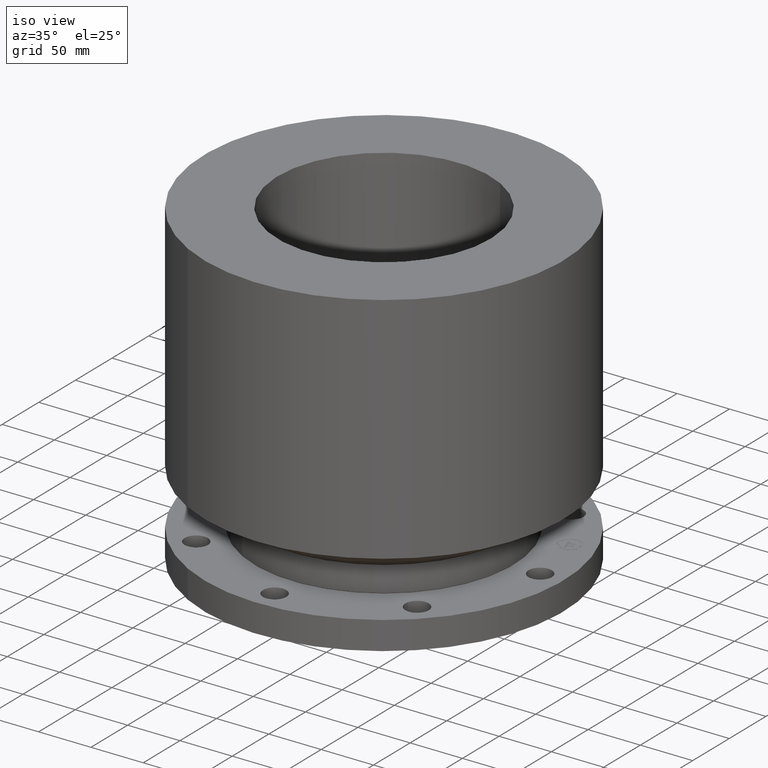
[diagram: clean part render]
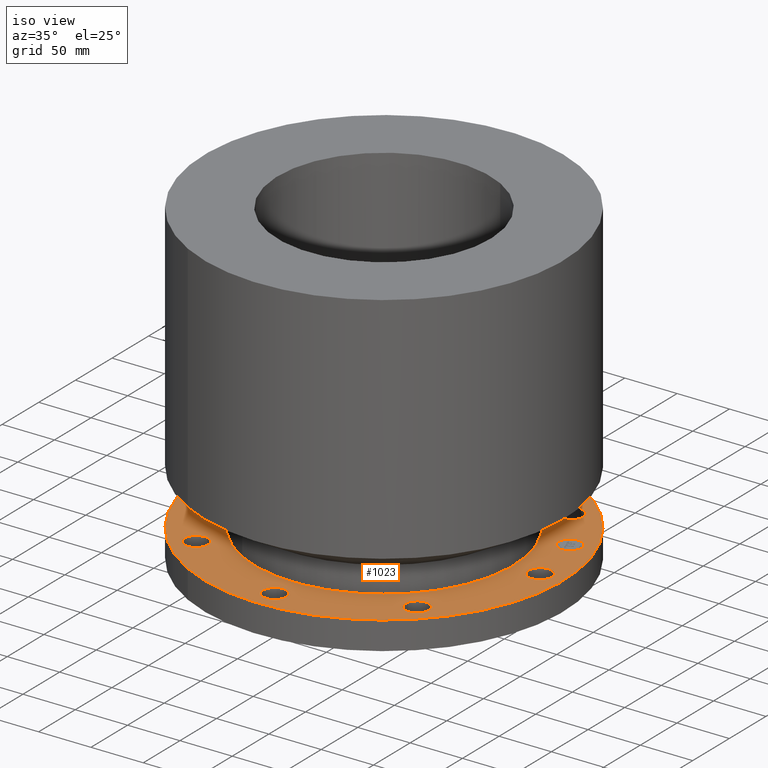
[diagram: same view with one face highlighted and labeled with its STEP entity id]
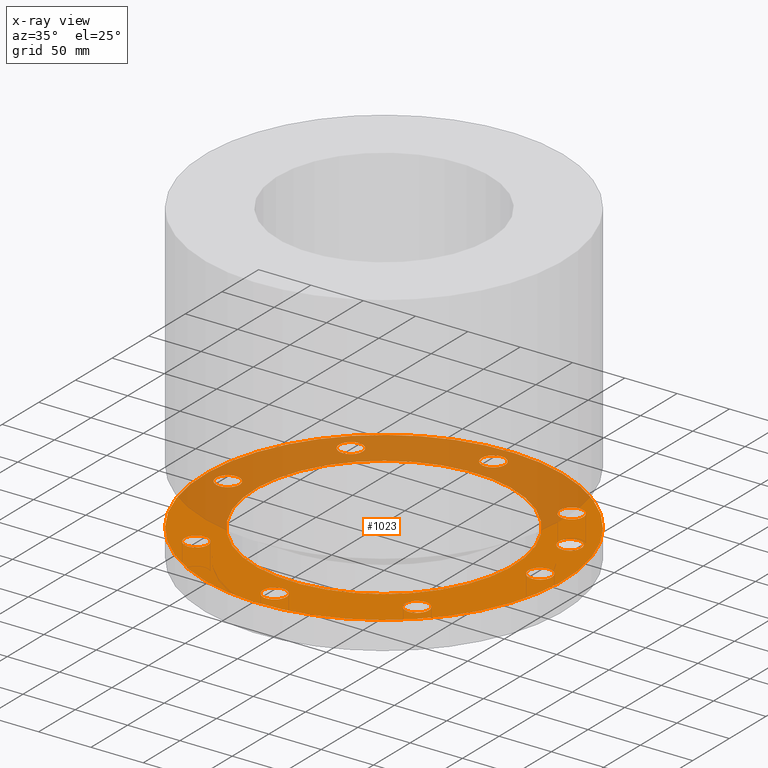
[diagram: x-ray of the same camera — body ghosted, the highlighted face saturated]
A machine part, iso view. The second image highlights one B-rep face of the part: STEP entity #1023.
The next image is the same camera in x-ray: the body ghosted, the highlighted face saturated — about 45% of this face is hidden behind the body in this view.
In plain terms, the highlighted planar face has unit normal (0, 0, -1).
Its self-contained STEP definition (entity closure, byte-faithful):
#65=AXIS2_PLACEMENT_3D('Circle Axis2P3D',#63,#64,$) ;
#266=AXIS2_PLACEMENT_3D('Circle Axis2P3D',#264,#265,$) ;
#285=AXIS2_PLACEMENT_3D('Circle Axis2P3D',#283,#284,$) ;
#302=AXIS2_PLACEMENT_3D('Circle Axis2P3D',#300,#301,$) ;
#337=AXIS2_PLACEMENT_3D('Circle Axis2P3D',#335,#336,$) ;
#649=AXIS2_PLACEMENT_3D('Circle Axis2P3D',#647,#648,$) ;
#680=AXIS2_PLACEMENT_3D('Circle Axis2P3D',#678,#679,$) ;
#692=AXIS2_PLACEMENT_3D('Circle Axis2P3D',#690,#691,$) ;
#723=AXIS2_PLACEMENT_3D('Circle Axis2P3D',#721,#722,$) ;
#735=AXIS2_PLACEMENT_3D('Circle Axis2P3D',#733,#734,$) ;
#766=AXIS2_PLACEMENT_3D('Circle Axis2P3D',#764,#765,$) ;
#778=AXIS2_PLACEMENT_3D('Circle Axis2P3D',#776,#777,$) ;
#809=AXIS2_PLACEMENT_3D('Circle Axis2P3D',#807,#808,$) ;
#821=AXIS2_PLACEMENT_3D('Circle Axis2P3D',#819,#820,$) ;
#852=AXIS2_PLACEMENT_3D('Circle Axis2P3D',#850,#851,$) ;
#864=AXIS2_PLACEMENT_3D('Circle Axis2P3D',#862,#863,$) ;
#895=AXIS2_PLACEMENT_3D('Circle Axis2P3D',#893,#894,$) ;
#907=AXIS2_PLACEMENT_3D('Circle Axis2P3D',#905,#906,$) ;
#938=AXIS2_PLACEMENT_3D('Circle Axis2P3D',#936,#937,$) ;
#950=AXIS2_PLACEMENT_3D('Circle Axis2P3D',#948,#949,$) ;
#963=AXIS2_PLACEMENT_3D('Plane Axis2P3D',#960,#961,#962) ;
#1007=AXIS2_PLACEMENT_3D('Circle Axis2P3D',#1005,#1006,$) ;
#1016=AXIS2_PLACEMENT_3D('Circle Axis2P3D',#1014,#1015,$) ;
#44=CARTESIAN_POINT('Vertex',(6.26113632726,0.210947236987,1.0575)) ;
#60=CARTESIAN_POINT('Vertex',(5.48886367279,-0.210947236987,1.0575)) ;
#63=CARTESIAN_POINT('Axis2P3D Location',(5.87500000002,0.,1.0575)) ;
#261=CARTESIAN_POINT('Vertex',(-3.23612238559,-5.92368229278,1.0575)) ;
#264=CARTESIAN_POINT('Axis2P3D Location',(0.,0.,1.0575)) ;
#268=CARTESIAN_POINT('Vertex',(3.23612238559,5.92368229278,1.0575)) ;
#283=CARTESIAN_POINT('Axis2P3D Location',(0.,0.,1.0575)) ;
#300=CARTESIAN_POINT('Axis2P3D Location',(0.,0.,1.0575)) ;
#304=CARTESIAN_POINT('Vertex',(2.33000811763,4.2650512508,1.0575)) ;
#306=CARTESIAN_POINT('Vertex',(-2.33000811763,-4.2650512508,1.0575)) ;
#335=CARTESIAN_POINT('Axis2P3D Location',(0.,0.,1.0575)) ;
#647=CARTESIAN_POINT('Axis2P3D Location',(5.87500000002,0.,1.0575)) ;
#668=CARTESIAN_POINT('Vertex',(4.57645417668,-4.27812973319,1.0575)) ;
#675=CARTESIAN_POINT('Vertex',(3.73205050229,-4.03037494578,1.0575)) ;
#678=CARTESIAN_POINT('Axis2P3D Location',(4.15425233949,-4.15425233949,1.0575)) ;
#690=CARTESIAN_POINT('Axis2P3D Location',(4.15425233949,-4.15425233949,1.0575)) ;
#711=CARTESIAN_POINT('Vertex',(0.210947236987,-6.26113632726,1.0575)) ;
#718=CARTESIAN_POINT('Vertex',(-0.210947236987,-5.48886367279,1.0575)) ;
#721=CARTESIAN_POINT('Axis2P3D Location',(-7.59224940954E-016,-5.87500000002,1.0575)) ;
#733=CARTESIAN_POINT('Axis2P3D Location',(-7.59224940954E-016,-5.87500000002,1.0575)) ;
#754=CARTESIAN_POINT('Vertex',(-4.27812973319,-4.57645417668,1.0575)) ;
#761=CARTESIAN_POINT('Vertex',(-4.03037494578,-3.73205050229,1.0575)) ;
#764=CARTESIAN_POINT('Axis2P3D Location',(-4.15425233949,-4.15425233949,1.0575)) ;
#776=CARTESIAN_POINT('Axis2P3D Location',(-4.15425233949,-4.15425233949,1.0575)) ;
#797=CARTESIAN_POINT('Vertex',(-6.26113632726,-0.210947236987,1.0575)) ;
#804=CARTESIAN_POINT('Vertex',(-5.48886367279,0.210947236987,1.0575)) ;
#807=CARTESIAN_POINT('Axis2P3D Location',(-5.87500000002,-7.19479994502E-016,1.0575)) ;
#819=CARTESIAN_POINT('Axis2P3D Location',(-5.87500000002,-7.19479994502E-016,1.0575)) ;
#840=CARTESIAN_POINT('Vertex',(-4.57645417668,4.27812973319,1.0575)) ;
#847=CARTESIAN_POINT('Vertex',(-3.73205050229,4.03037494578,1.0575)) ;
#850=CARTESIAN_POINT('Axis2P3D Location',(-4.15425233949,4.15425233949,1.0575)) ;
#862=CARTESIAN_POINT('Axis2P3D Location',(-4.15425233949,4.15425233949,1.0575)) ;
#883=CARTESIAN_POINT('Vertex',(-0.210947236987,6.26113632726,1.0575)) ;
#890=CARTESIAN_POINT('Vertex',(0.210947236987,5.48886367279,1.0575)) ;
#893=CARTESIAN_POINT('Axis2P3D Location',(-1.07921999175E-015,5.87500000002,1.0575)) ;
#905=CARTESIAN_POINT('Axis2P3D Location',(-1.07921999175E-015,5.87500000002,1.0575)) ;
#926=CARTESIAN_POINT('Vertex',(4.27812973319,4.57645417668,1.0575)) ;
#933=CARTESIAN_POINT('Vertex',(4.03037494578,3.73205050229,1.0575)) ;
#936=CARTESIAN_POINT('Axis2P3D Location',(4.15425233949,4.15425233949,1.0575)) ;
#948=CARTESIAN_POINT('Axis2P3D Location',(4.15425233949,4.15425233949,1.0575)) ;
#960=CARTESIAN_POINT('Axis2P3D Location',(0.,6.75000000003,1.0575)) ;
#1005=CARTESIAN_POINT('Axis2P3D Location',(5.42779225353,2.24826516515,1.0575)) ;
#1009=CARTESIAN_POINT('Vertex',(5.59043271065,1.85561636776,1.0575)) ;
#1011=CARTESIAN_POINT('Vertex',(5.2651517964,2.64091396255,1.0575)) ;
#1014=CARTESIAN_POINT('Axis2P3D Location',(5.42779225353,2.24826516515,1.0575)) ;
#64=DIRECTION('Axis2P3D Direction',(0.,-0.,0.0393700787402)) ;
#265=DIRECTION('Axis2P3D Direction',(0.,0.,-0.0393700787402)) ;
#284=DIRECTION('Axis2P3D Direction',(0.,0.,-0.0393700787402)) ;
#301=DIRECTION('Axis2P3D Direction',(0.,0.,-0.0393700787402)) ;
#336=DIRECTION('Axis2P3D Direction',(0.,0.,-0.0393700787402)) ;
#648=DIRECTION('Axis2P3D Direction',(0.,-0.,0.0393700787402)) ;
#679=DIRECTION('Axis2P3D Direction',(-0.,0.,0.0393700787402)) ;
#691=DIRECTION('Axis2P3D Direction',(-0.,0.,0.0393700787402)) ;
#722=DIRECTION('Axis2P3D Direction',(-0.,0.,0.0393700787402)) ;
#734=DIRECTION('Axis2P3D Direction',(-0.,0.,0.0393700787402)) ;
#765=DIRECTION('Axis2P3D Direction',(0.,0.,0.0393700787402)) ;
#777=DIRECTION('Axis2P3D Direction',(0.,0.,0.0393700787402)) ;
#808=DIRECTION('Axis2P3D Direction',(0.,0.,0.0393700787402)) ;
#820=DIRECTION('Axis2P3D Direction',(0.,0.,0.0393700787402)) ;
#851=DIRECTION('Axis2P3D Direction',(0.,0.,0.0393700787402)) ;
#863=DIRECTION('Axis2P3D Direction',(0.,0.,0.0393700787402)) ;
#894=DIRECTION('Axis2P3D Direction',(0.,0.,0.0393700787402)) ;
#906=DIRECTION('Axis2P3D Direction',(0.,0.,0.0393700787402)) ;
#937=DIRECTION('Axis2P3D Direction',(0.,-0.,0.0393700787402)) ;
#949=DIRECTION('Axis2P3D Direction',(0.,-0.,0.0393700787402)) ;
#961=DIRECTION('Axis2P3D Direction',(0.,0.,-0.0393700787402)) ;
#962=DIRECTION('Axis2P3D XDirection',(0.0393700787402,0.,0.)) ;
#1006=DIRECTION('Axis2P3D Direction',(0.,0.,-0.0393700787402)) ;
#1015=DIRECTION('Axis2P3D Direction',(0.,0.,-0.0393700787402)) ;
#966=ORIENTED_EDGE('',*,*,#287,.F.) ;
#967=ORIENTED_EDGE('',*,*,#270,.F.) ;
#970=ORIENTED_EDGE('',*,*,#67,.T.) ;
#971=ORIENTED_EDGE('',*,*,#651,.T.) ;
#974=ORIENTED_EDGE('',*,*,#339,.T.) ;
#975=ORIENTED_EDGE('',*,*,#308,.T.) ;
#978=ORIENTED_EDGE('',*,*,#694,.T.) ;
#979=ORIENTED_EDGE('',*,*,#682,.T.) ;
#982=ORIENTED_EDGE('',*,*,#737,.T.) ;
#983=ORIENTED_EDGE('',*,*,#725,.T.) ;
#986=ORIENTED_EDGE('',*,*,#780,.T.) ;
#987=ORIENTED_EDGE('',*,*,#768,.T.) ;
#990=ORIENTED_EDGE('',*,*,#823,.T.) ;
#991=ORIENTED_EDGE('',*,*,#811,.T.) ;
#994=ORIENTED_EDGE('',*,*,#866,.T.) ;
#995=ORIENTED_EDGE('',*,*,#854,.T.) ;
#998=ORIENTED_EDGE('',*,*,#909,.T.) ;
#999=ORIENTED_EDGE('',*,*,#897,.T.) ;
#1002=ORIENTED_EDGE('',*,*,#952,.T.) ;
#1003=ORIENTED_EDGE('',*,*,#940,.T.) ;
#1020=ORIENTED_EDGE('',*,*,#1013,.F.) ;
#1021=ORIENTED_EDGE('',*,*,#1018,.F.) ;
#972=FACE_BOUND('',#969,.T.) ;
#976=FACE_BOUND('',#973,.T.) ;
#980=FACE_BOUND('',#977,.T.) ;
#984=FACE_BOUND('',#981,.T.) ;
#988=FACE_BOUND('',#985,.T.) ;
#992=FACE_BOUND('',#989,.T.) ;
#996=FACE_BOUND('',#993,.T.) ;
#1000=FACE_BOUND('',#997,.T.) ;
#1004=FACE_BOUND('',#1001,.T.) ;
#1022=FACE_BOUND('',#1019,.T.) ;
#1023=ADVANCED_FACE('PartBody',(#968,#972,#976,#980,#984,#988,#992,#996,#1000,#1004,#1022),#964,.F.) ;
#66=CIRCLE('generated circle',#65,0.440000000002) ;
#267=CIRCLE('generated circle',#266,6.75000000003) ;
#286=CIRCLE('generated circle',#285,6.75000000003) ;
#303=CIRCLE('generated circle',#302,4.86000000002) ;
#338=CIRCLE('generated circle',#337,4.86000000002) ;
#650=CIRCLE('generated circle',#649,0.440000000002) ;
#681=CIRCLE('generated circle',#680,0.440000000002) ;
#693=CIRCLE('generated circle',#692,0.440000000002) ;
#724=CIRCLE('generated circle',#723,0.440000000002) ;
#736=CIRCLE('generated circle',#735,0.440000000002) ;
#767=CIRCLE('generated circle',#766,0.440000000002) ;
#779=CIRCLE('generated circle',#778,0.440000000002) ;
#810=CIRCLE('generated circle',#809,0.440000000002) ;
#822=CIRCLE('generated circle',#821,0.440000000002) ;
#853=CIRCLE('generated circle',#852,0.440000000002) ;
#865=CIRCLE('generated circle',#864,0.440000000002) ;
#896=CIRCLE('generated circle',#895,0.440000000002) ;
#908=CIRCLE('generated circle',#907,0.440000000002) ;
#939=CIRCLE('generated circle',#938,0.440000000002) ;
#951=CIRCLE('generated circle',#950,0.440000000002) ;
#1008=CIRCLE('generated circle',#1007,0.424999995752) ;
#1017=CIRCLE('generated circle',#1016,0.424999995752) ;
#67=EDGE_CURVE('',#45,#61,#66,.F.) ;
#270=EDGE_CURVE('',#262,#269,#267,.T.) ;
#287=EDGE_CURVE('',#269,#262,#286,.T.) ;
#308=EDGE_CURVE('',#305,#307,#303,.T.) ;
#339=EDGE_CURVE('',#307,#305,#338,.T.) ;
#651=EDGE_CURVE('',#61,#45,#650,.F.) ;
#682=EDGE_CURVE('',#669,#676,#681,.F.) ;
#694=EDGE_CURVE('',#676,#669,#693,.F.) ;
#725=EDGE_CURVE('',#712,#719,#724,.F.) ;
#737=EDGE_CURVE('',#719,#712,#736,.F.) ;
#768=EDGE_CURVE('',#755,#762,#767,.F.) ;
#780=EDGE_CURVE('',#762,#755,#779,.F.) ;
#811=EDGE_CURVE('',#798,#805,#810,.F.) ;
#823=EDGE_CURVE('',#805,#798,#822,.F.) ;
#854=EDGE_CURVE('',#841,#848,#853,.F.) ;
#866=EDGE_CURVE('',#848,#841,#865,.F.) ;
#897=EDGE_CURVE('',#884,#891,#896,.F.) ;
#909=EDGE_CURVE('',#891,#884,#908,.F.) ;
#940=EDGE_CURVE('',#927,#934,#939,.F.) ;
#952=EDGE_CURVE('',#934,#927,#951,.F.) ;
#1013=EDGE_CURVE('',#1010,#1012,#1008,.F.) ;
#1018=EDGE_CURVE('',#1012,#1010,#1017,.F.) ;
#965=EDGE_LOOP('',(#966,#967)) ;
#969=EDGE_LOOP('',(#970,#971)) ;
#973=EDGE_LOOP('',(#974,#975)) ;
#977=EDGE_LOOP('',(#978,#979)) ;
#981=EDGE_LOOP('',(#982,#983)) ;
#985=EDGE_LOOP('',(#986,#987)) ;
#989=EDGE_LOOP('',(#990,#991)) ;
#993=EDGE_LOOP('',(#994,#995)) ;
#997=EDGE_LOOP('',(#998,#999)) ;
#1001=EDGE_LOOP('',(#1002,#1003)) ;
#1019=EDGE_LOOP('',(#1020,#1021)) ;
#968=FACE_OUTER_BOUND('',#965,.T.) ;
#964=PLANE('',#963) ;
#45=VERTEX_POINT('',#44) ;
#61=VERTEX_POINT('',#60) ;
#262=VERTEX_POINT('',#261) ;
#269=VERTEX_POINT('',#268) ;
#305=VERTEX_POINT('',#304) ;
#307=VERTEX_POINT('',#306) ;
#669=VERTEX_POINT('',#668) ;
#676=VERTEX_POINT('',#675) ;
#712=VERTEX_POINT('',#711) ;
#719=VERTEX_POINT('',#718) ;
#755=VERTEX_POINT('',#754) ;
#762=VERTEX_POINT('',#761) ;
#798=VERTEX_POINT('',#797) ;
#805=VERTEX_POINT('',#804) ;
#841=VERTEX_POINT('',#840) ;
#848=VERTEX_POINT('',#847) ;
#884=VERTEX_POINT('',#883) ;
#891=VERTEX_POINT('',#890) ;
#927=VERTEX_POINT('',#926) ;
#934=VERTEX_POINT('',#933) ;
#1010=VERTEX_POINT('',#1009) ;
#1012=VERTEX_POINT('',#1011) ;